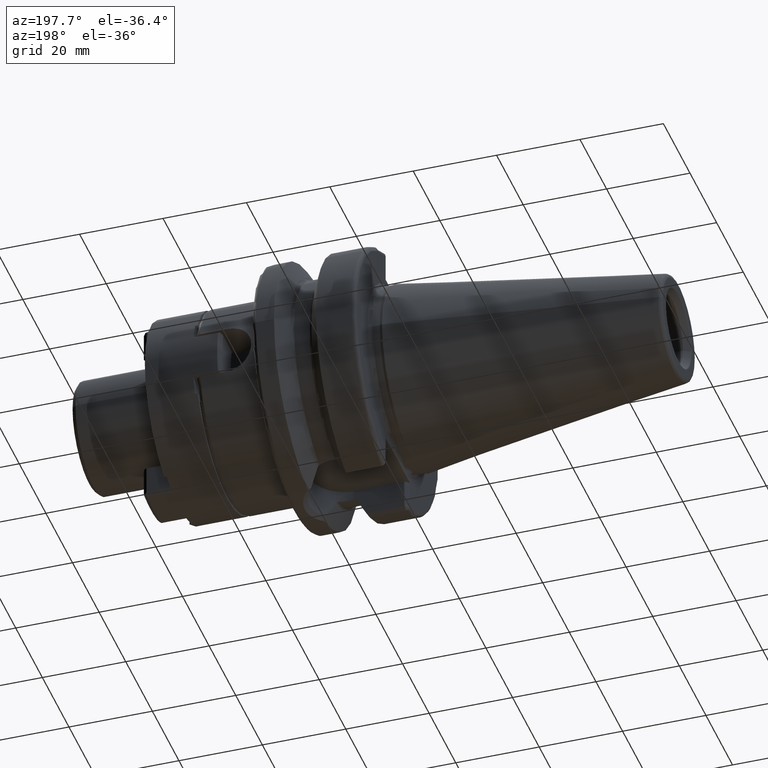
[diagram: clean part render]
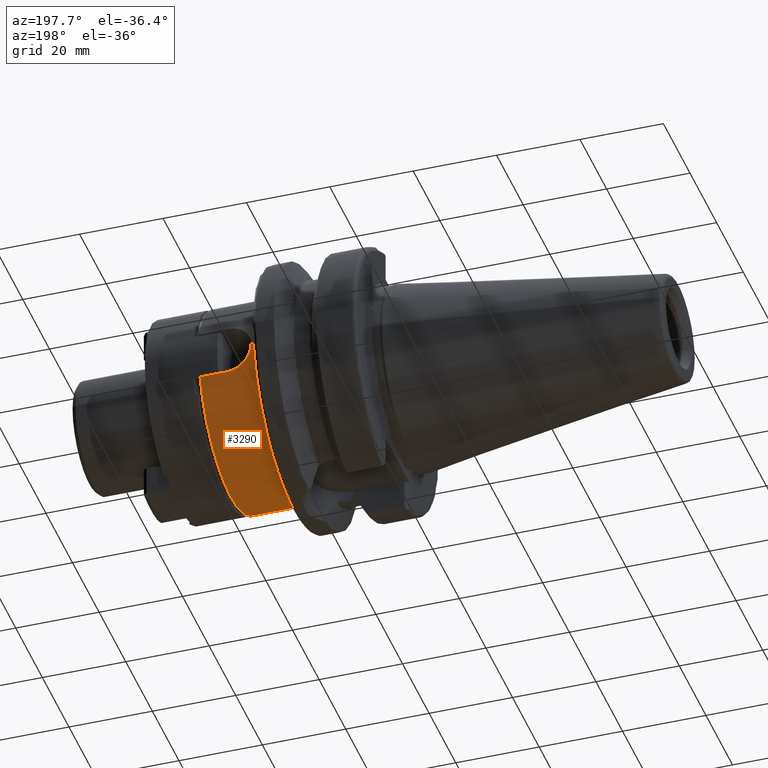
[diagram: same view with one face highlighted and labeled with its STEP entity id]
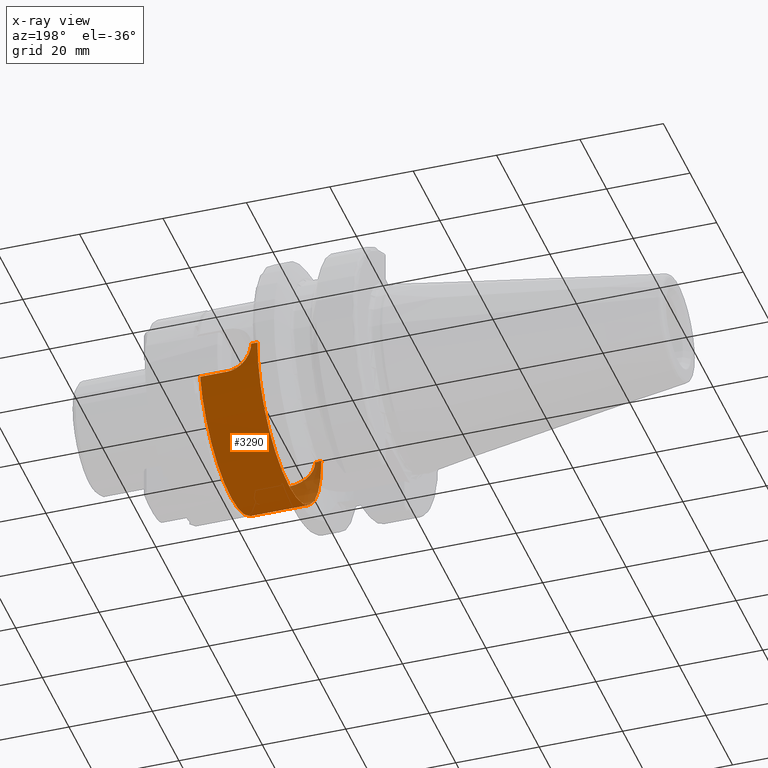
[diagram: x-ray of the same camera — body ghosted, the highlighted face saturated]
A machine part, auxiliary view. The second image highlights one B-rep face of the part: STEP entity #3290.
The next image is the same camera in x-ray: the body ghosted, the highlighted face saturated — about 7% of this face is hidden behind the body in this view.
In plain terms, the highlighted cylindrical surface (partial cylindrical patch) has radius 24 mm, axis along (1, 0, 0).
Its self-contained STEP definition (entity closure, byte-faithful):
#856=CARTESIAN_POINT('',(2.95E1,-2.4E1,1.781618678588E-14));
#885=CARTESIAN_POINT('',(2.95E1,2.4E1,0.E0));
#1182=CARTESIAN_POINT('',(3.555E1,-2.322493272326E1,-6.05E0));
#1183=CARTESIAN_POINT('',(3.520166798978E1,-2.322493272326E1,-6.05E0));
#1184=CARTESIAN_POINT('',(3.451332398683E1,-2.324034635662E1,
-5.991357489346E0));
#1185=CARTESIAN_POINT('',(3.348235176246E1,-2.330966736882E1,
-5.718639353450E0));
#1186=CARTESIAN_POINT('',(3.252316781106E1,-2.341537308786E1,
-5.274383114966E0));
#1187=CARTESIAN_POINT('',(3.164136423803E1,-2.354690691277E1,
-4.658785688131E0));
#1188=CARTESIAN_POINT('',(3.089130418244E1,-2.368442160990E1,
-3.908890442908E0));
#1189=CARTESIAN_POINT('',(3.027488290499E1,-2.381460070680E1,
-3.025580664896E0));
#1190=CARTESIAN_POINT('',(2.983165382847E1,-2.391774975692E1,
-2.067955599693E0));
#1191=CARTESIAN_POINT('',(2.955904216098E1,-2.398499900672E1,
-1.039018493816E0));
#1192=CARTESIAN_POINT('',(2.95E1,-2.4E1,-3.491431921861E-1));
#1193=CARTESIAN_POINT('',(2.95E1,-2.4E1,1.781618678588E-14));
#1195=DIRECTION('',(1.E0,0.E0,0.E0));
#1196=VECTOR('',#1195,6.45E0);
#1197=CARTESIAN_POINT('',(3.555E1,-2.322493272326E1,-6.05E0));
#1198=LINE('',#1197,#1196);
#1199=CARTESIAN_POINT('',(4.2E1,0.E0,0.E0));
#1200=DIRECTION('',(-1.E0,0.E0,0.E0));
#1201=DIRECTION('',(0.E0,9.677055301359E-1,-2.520833333333E-1));
#1202=AXIS2_PLACEMENT_3D('',#1199,#1200,#1201);
#1204=DIRECTION('',(1.E0,0.E0,0.E0));
#1205=VECTOR('',#1204,6.45E0);
#1206=CARTESIAN_POINT('',(3.555E1,2.322493272326E1,-6.05E0));
#1207=LINE('',#1206,#1205);
#1208=CARTESIAN_POINT('',(2.95E1,2.4E1,0.E0));
#1209=CARTESIAN_POINT('',(2.95E1,2.4E1,-3.492072864011E-1));
#1210=CARTESIAN_POINT('',(2.955906932302E1,2.398499219233E1,-1.039175392094E0));
#1211=CARTESIAN_POINT('',(2.983168555735E1,2.391774208869E1,-2.068038316395E0));
#1212=CARTESIAN_POINT('',(3.027494743312E1,2.381458617608E1,-3.025697846180E0));
#1213=CARTESIAN_POINT('',(3.089138097051E1,2.368440661931E1,-3.908977322013E0));
#1214=CARTESIAN_POINT('',(3.164142032499E1,2.354689766311E1,-4.658831268150E0));
#1215=CARTESIAN_POINT('',(3.252322395040E1,2.341536610778E1,-5.274413414350E0));
#1216=CARTESIAN_POINT('',(3.348236891927E1,2.330966621434E1,-5.718643672600E0));
#1217=CARTESIAN_POINT('',(3.451333675133E1,2.324034582896E1,-5.991359599858E0));
#1218=CARTESIAN_POINT('',(3.520167164982E1,2.322493272326E1,-6.05E0));
#1219=CARTESIAN_POINT('',(3.555E1,2.322493272326E1,-6.05E0));
#1221=DIRECTION('',(-1.E0,0.E0,8.752958054790E-13));
#1222=VECTOR('',#1221,1.5E0);
#1223=CARTESIAN_POINT('',(2.95E1,2.4E1,0.E0));
#1224=LINE('',#1223,#1222);
#1225=CARTESIAN_POINT('',(2.8E1,0.E0,0.E0));
#1226=DIRECTION('',(1.E0,0.E0,0.E0));
#1227=DIRECTION('',(0.E0,-1.E0,0.E0));
#1228=AXIS2_PLACEMENT_3D('',#1225,#1226,#1227);
#1230=DIRECTION('',(-1.E0,0.E0,-8.876199103329E-13));
#1231=VECTOR('',#1230,1.5E0);
#1232=CARTESIAN_POINT('',(2.95E1,-2.4E1,1.781618678588E-14));
#1233=LINE('',#1232,#1231);
#1685=CARTESIAN_POINT('',(2.8E1,-2.4E1,0.E0));
#1686=CARTESIAN_POINT('',(2.8E1,2.4E1,0.E0));
#1687=VERTEX_POINT('',#1685);
#1688=VERTEX_POINT('',#1686);
#1720=VERTEX_POINT('',#885);
#1723=VERTEX_POINT('',#1219);
#1724=CARTESIAN_POINT('',(4.2E1,2.322493272326E1,-6.05E0));
#1725=VERTEX_POINT('',#1724);
#1734=CARTESIAN_POINT('',(3.555E1,-2.322493272326E1,-6.05E0));
#1735=VERTEX_POINT('',#1734);
#1742=VERTEX_POINT('',#856);
#1745=CARTESIAN_POINT('',(4.2E1,-2.322493272326E1,-6.05E0));
#1746=VERTEX_POINT('',#1745);
#3274=CARTESIAN_POINT('',(2.455E1,0.E0,0.E0));
#3275=DIRECTION('',(1.E0,0.E0,0.E0));
#3276=DIRECTION('',(0.E0,-1.E0,0.E0));
#3277=AXIS2_PLACEMENT_3D('',#3274,#3275,#3276);
#3278=CYLINDRICAL_SURFACE('',#3277,2.4E1);
#3279=ORIENTED_EDGE('',*,*,#2918,.F.);
#3280=ORIENTED_EDGE('',*,*,#2939,.T.);
#3281=ORIENTED_EDGE('',*,*,#2998,.F.);
#3283=ORIENTED_EDGE('',*,*,#3282,.F.);
#3284=ORIENTED_EDGE('',*,*,#3265,.F.);
#3285=ORIENTED_EDGE('',*,*,#2898,.T.);
#3286=ORIENTED_EDGE('',*,*,#2868,.F.);
#3287=ORIENTED_EDGE('',*,*,#2895,.F.);
#3288=EDGE_LOOP('',(#3279,#3280,#3281,#3283,#3284,#3285,#3286,#3287));
#3289=FACE_OUTER_BOUND('',#3288,.F.);
#3290=ADVANCED_FACE('',(#3289),#3278,.T.);
#1194=B_SPLINE_CURVE_WITH_KNOTS('',3,(#1182,#1183,#1184,#1185,#1186,#1187,#1188,
#1189,#1190,#1191,#1192,#1193),.UNSPECIFIED.,.F.,.F.,(4,1,1,1,1,1,1,1,1,4),
(0.E0,1.111111111111E-1,2.222222222222E-1,3.333333333333E-1,4.444444444444E-1,
5.555555555556E-1,6.666666666667E-1,7.777777777778E-1,8.888888888889E-1,1.E0),
.UNSPECIFIED.);
#1203=CIRCLE('',#1202,2.4E1);
#1220=B_SPLINE_CURVE_WITH_KNOTS('',3,(#1208,#1209,#1210,#1211,#1212,#1213,#1214,
#1215,#1216,#1217,#1218,#1219),.UNSPECIFIED.,.F.,.F.,(4,1,1,1,1,1,1,1,1,4),
(0.E0,1.111111111111E-1,2.222222222222E-1,3.333333333333E-1,4.444444444444E-1,
5.555555555556E-1,6.666666666667E-1,7.777777777778E-1,8.888888888889E-1,1.E0),
.UNSPECIFIED.);
#1229=CIRCLE('',#1228,2.4E1);
#2868=EDGE_CURVE('',#1687,#1688,#1229,.T.);
#2895=EDGE_CURVE('',#1742,#1687,#1233,.T.);
#2898=EDGE_CURVE('',#1720,#1688,#1224,.T.);
#2918=EDGE_CURVE('',#1735,#1742,#1194,.T.);
#2939=EDGE_CURVE('',#1735,#1746,#1198,.T.);
#2998=EDGE_CURVE('',#1725,#1746,#1203,.T.);
#3265=EDGE_CURVE('',#1720,#1723,#1220,.T.);
#3282=EDGE_CURVE('',#1723,#1725,#1207,.T.);